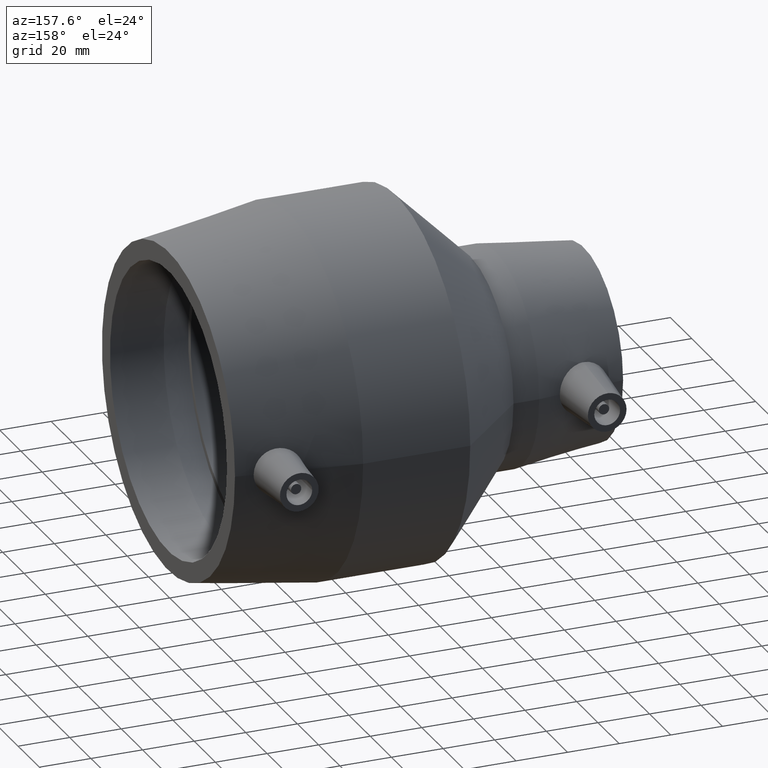
[diagram: clean part render]
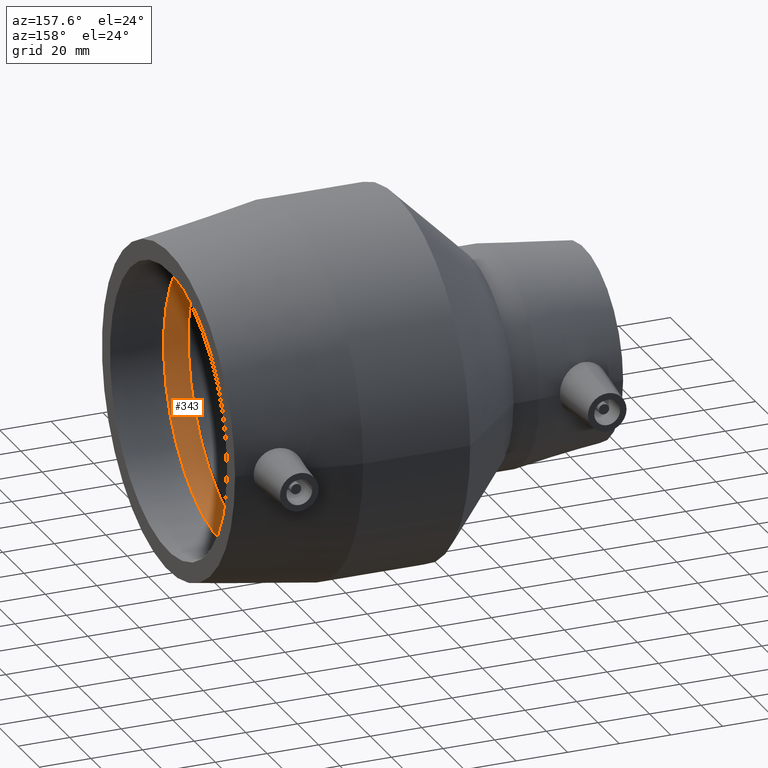
[diagram: same view with one face highlighted and labeled with its STEP entity id]
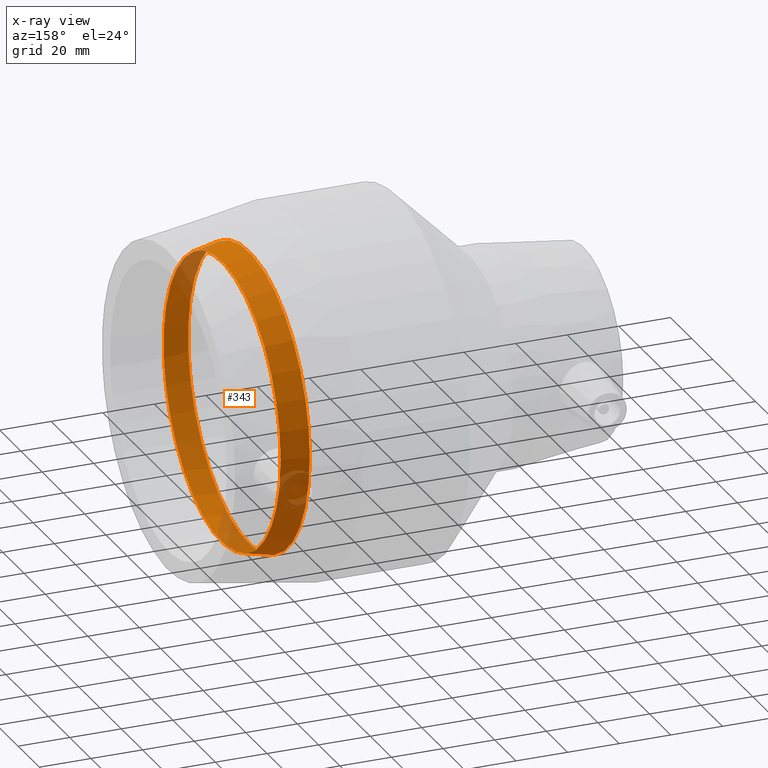
[diagram: x-ray of the same camera — body ghosted, the highlighted face saturated]
A machine part, auxiliary view. The second image highlights one B-rep face of the part: STEP entity #343.
The next image is the same camera in x-ray: the body ghosted, the highlighted face saturated — about 14% of this face is hidden behind the body in this view.
In plain terms, the highlighted conical surface has half-angle 12 deg.
Its self-contained STEP definition (entity closure, byte-faithful):
#21=CONICAL_SURFACE('',#393,56.1052941206841,12.);
#42=FACE_BOUND('',#134,.T.);
#85=FACE_OUTER_BOUND('',#133,.T.);
#133=EDGE_LOOP('',(#286));
#134=EDGE_LOOP('',(#287));
#176=CIRCLE('',#392,55.);
#177=CIRCLE('',#394,57.2105882413682);
#207=VERTEX_POINT('',#661);
#208=VERTEX_POINT('',#664);
#238=EDGE_CURVE('',#207,#207,#176,.T.);
#239=EDGE_CURVE('',#208,#208,#177,.T.);
#286=ORIENTED_EDGE('',*,*,#239,.F.);
#287=ORIENTED_EDGE('',*,*,#238,.T.);
#343=ADVANCED_FACE('',(#85,#42),#21,.F.);
#392=AXIS2_PLACEMENT_3D('',#662,#488,#489);
#393=AXIS2_PLACEMENT_3D('',#663,#490,#491);
#394=AXIS2_PLACEMENT_3D('',#665,#492,#493);
#488=DIRECTION('center_axis',(1.,1.83697019872103E-16,0.));
#489=DIRECTION('ref_axis',(0.,0.,-1.));
#490=DIRECTION('center_axis',(-1.,-1.83697019872103E-16,0.));
#491=DIRECTION('ref_axis',(-1.72213011695957E-16,1.,0.));
#492=DIRECTION('center_axis',(1.,1.83697019872103E-16,0.));
#493=DIRECTION('ref_axis',(0.,0.,-1.));
#661=CARTESIAN_POINT('',(59.7,55.,0.));
#662=CARTESIAN_POINT('Origin',(59.7,2.57543221860688E-14,0.));
#663=CARTESIAN_POINT('Origin',(54.5,2.47990976827339E-14,0.));
#664=CARTESIAN_POINT('',(49.3,57.2105882413682,0.));
#665=CARTESIAN_POINT('Origin',(49.3,2.3843873179399E-14,0.));